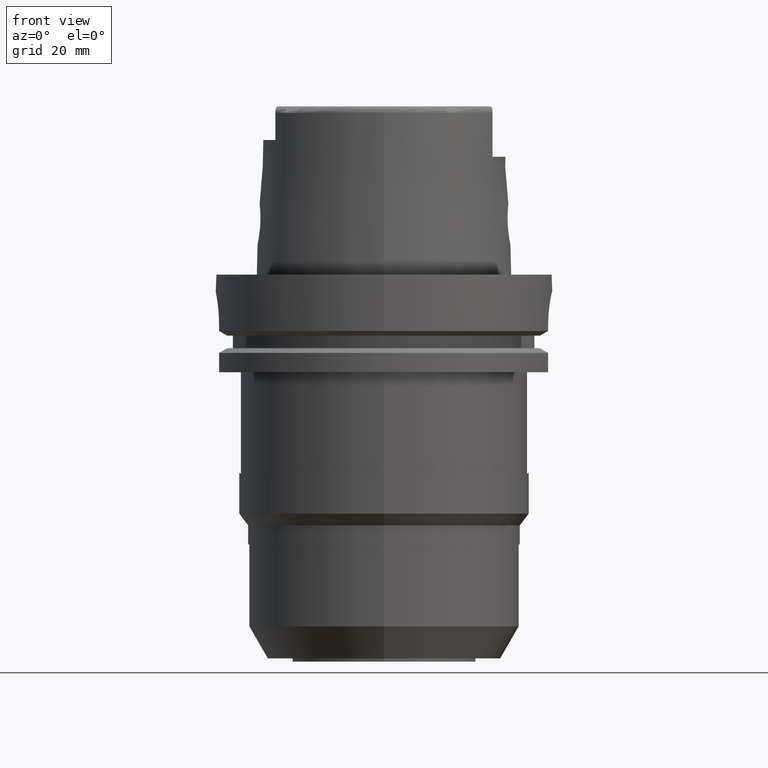
[diagram: clean part render]
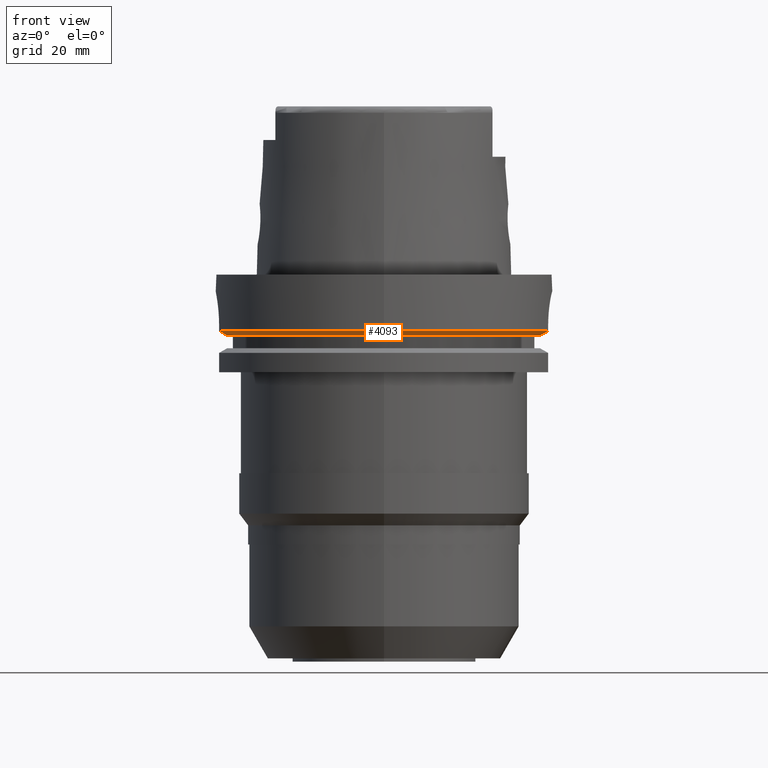
[diagram: same view with one face highlighted and labeled with its STEP entity id]
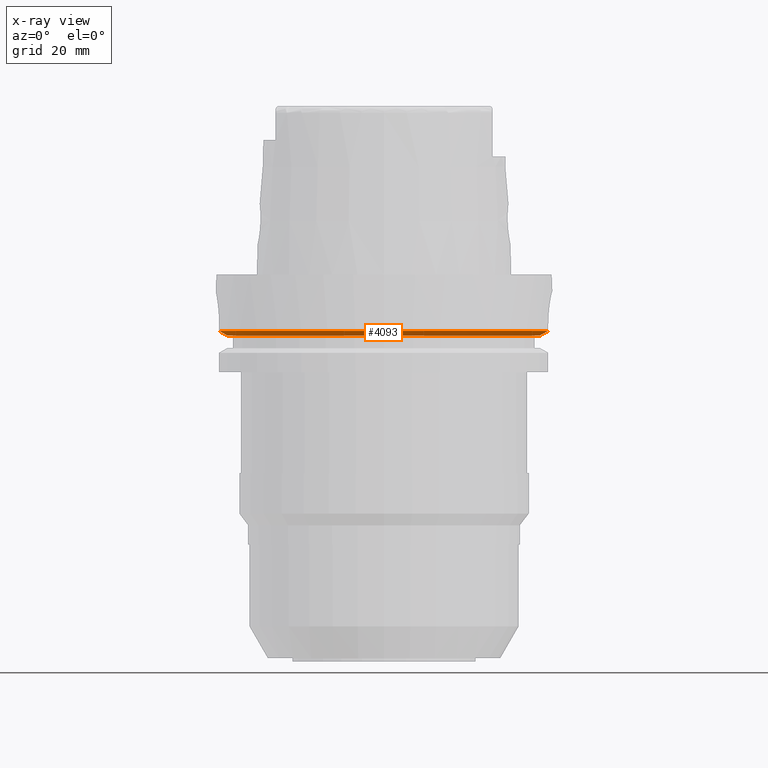
[diagram: x-ray of the same camera — body ghosted, the highlighted face saturated]
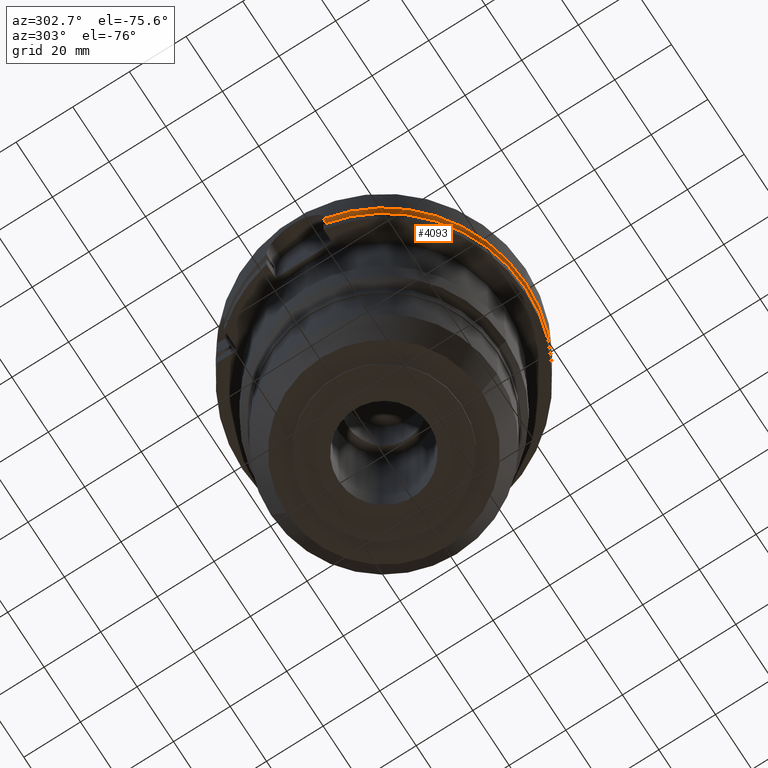
[diagram: same view with one face highlighted and labeled with its STEP entity id]
A machine part, front view. The second image highlights one B-rep face of the part: STEP entity #4093.
The next image is the same camera in x-ray: the body ghosted, the highlighted face saturated — about 0% of this face is hidden behind the body in this view.
A second angle (auxiliary view) of the same face is appended — the face is thin or edge-on in the first view.
In plain terms, the highlighted conical surface has half-angle 60 deg.
Its self-contained STEP definition (entity closure, byte-faithful):
#1890=CARTESIAN_POINT('',(-4.656083740330E1,-1.E1,-1.8125E1));
#1891=CARTESIAN_POINT('',(-4.683084020607E1,-1.E1,-1.797258933137E1));
#1892=CARTESIAN_POINT('',(-4.737076227628E1,-1.E1,-1.766769351207E1));
#1893=CARTESIAN_POINT('',(-4.818041161677E1,-1.E1,-1.721015586611E1));
#1894=CARTESIAN_POINT('',(-4.872002593967E1,-1.E1,-1.690500907969E1));
#1895=CARTESIAN_POINT('',(-4.898979485566E1,-1.E1,-1.675240473581E1));
#1900=CARTESIAN_POINT('',(0.E0,0.E0,-1.675240473581E1));
#1901=DIRECTION('',(0.E0,0.E0,1.E0));
#1902=DIRECTION('',(-9.797958971133E-1,-2.E-1,0.E0));
#1903=AXIS2_PLACEMENT_3D('',#1900,#1901,#1902);
#1908=CARTESIAN_POINT('',(0.E0,0.E0,-1.675240473581E1));
#1909=DIRECTION('',(0.E0,0.E0,1.E0));
#1910=DIRECTION('',(0.E0,-1.E0,0.E0));
#1911=AXIS2_PLACEMENT_3D('',#1908,#1909,#1910);
#1916=CARTESIAN_POINT('',(4.877499359303E1,-1.1E1,-1.675240473581E1));
#1917=CARTESIAN_POINT('',(4.850399904748E1,-1.1E1,-1.690503024962E1));
#1918=CARTESIAN_POINT('',(4.796191616323E1,-1.1E1,-1.721020456770E1));
#1919=CARTESIAN_POINT('',(4.714851446810E1,-1.1E1,-1.766774350267E1));
#1920=CARTESIAN_POINT('',(4.660605711265E1,-1.1E1,-1.797261191789E1));
#1921=CARTESIAN_POINT('',(4.633477721644E1,-1.1E1,-1.8125E1));
#1933=CARTESIAN_POINT('',(0.E0,0.E0,-1.8125E1));
#1934=DIRECTION('',(0.E0,0.E0,1.E0));
#1935=DIRECTION('',(-9.777047459300E-1,-2.099843560504E-1,0.E0));
#1936=AXIS2_PLACEMENT_3D('',#1933,#1934,#1935);
#1941=CARTESIAN_POINT('',(0.E0,0.E0,-1.8125E1));
#1942=DIRECTION('',(0.E0,0.E0,1.E0));
#1943=DIRECTION('',(0.E0,-1.E0,0.E0));
#1944=AXIS2_PLACEMENT_3D('',#1941,#1942,#1943);
#2566=CARTESIAN_POINT('',(-4.898979485566E1,-1.E1,-1.675240473581E1));
#2567=VERTEX_POINT('',#2566);
#2568=VERTEX_POINT('',#1890);
#2617=CARTESIAN_POINT('',(-1.598721155460E-14,-4.762259526419E1,-1.8125E1));
#2618=CARTESIAN_POINT('',(4.633477721644E1,-1.1E1,-1.8125E1));
#2619=VERTEX_POINT('',#2617);
#2620=VERTEX_POINT('',#2618);
#2627=CARTESIAN_POINT('',(0.E0,-5.E1,-1.675240473581E1));
#2628=VERTEX_POINT('',#2627);
#2629=CARTESIAN_POINT('',(4.877499359303E1,-1.1E1,-1.675240473581E1));
#2630=VERTEX_POINT('',#2629);
#4078=CARTESIAN_POINT('',(0.E0,0.E0,-1.743870236790E1));
#4079=DIRECTION('',(0.E0,0.E0,1.E0));
#4080=DIRECTION('',(0.E0,1.E0,0.E0));
#4081=AXIS2_PLACEMENT_3D('',#4078,#4079,#4080);
#4082=CONICAL_SURFACE('',#4081,4.881129763209E1,6.E1);
#4083=ORIENTED_EDGE('',*,*,#3804,.T.);
#4084=ORIENTED_EDGE('',*,*,#3925,.T.);
#4085=ORIENTED_EDGE('',*,*,#4027,.T.);
#4086=ORIENTED_EDGE('',*,*,#3765,.T.);
#4088=ORIENTED_EDGE('',*,*,#4087,.F.);
#4090=ORIENTED_EDGE('',*,*,#4089,.F.);
#4091=EDGE_LOOP('',(#4083,#4084,#4085,#4086,#4088,#4090));
#4092=FACE_OUTER_BOUND('',#4091,.F.);
#1896=B_SPLINE_CURVE_WITH_KNOTS('',3,(#1890,#1891,#1892,#1893,#1894,#1895),
.UNSPECIFIED.,.F.,.F.,(4,1,1,4),(0.E0,3.333333333333E-1,6.666666666667E-1,1.E0),
.UNSPECIFIED.);
#1904=CIRCLE('',#1903,5.E1);
#1912=CIRCLE('',#1911,5.E1);
#1922=B_SPLINE_CURVE_WITH_KNOTS('',3,(#1916,#1917,#1918,#1919,#1920,#1921),
.UNSPECIFIED.,.F.,.F.,(4,1,1,4),(0.E0,3.333333333333E-1,6.666666666667E-1,1.E0),
.UNSPECIFIED.);
#1937=CIRCLE('',#1936,4.762259526419E1);
#1945=CIRCLE('',#1944,4.762259526419E1);
#3765=EDGE_CURVE('',#2630,#2620,#1922,.T.);
#3804=EDGE_CURVE('',#2568,#2567,#1896,.T.);
#3925=EDGE_CURVE('',#2567,#2628,#1904,.T.);
#4027=EDGE_CURVE('',#2628,#2630,#1912,.T.);
#4087=EDGE_CURVE('',#2619,#2620,#1945,.T.);
#4089=EDGE_CURVE('',#2568,#2619,#1937,.T.);
#4093=ADVANCED_FACE('',(#4092),#4082,.T.);